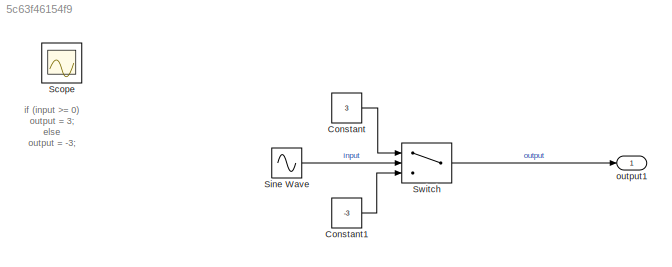
MODEL slx_5c63f46154f9
KIND model
CONFIG AbsTol = auto
CONFIG EnableMultiTasking = on
CONFIG FixedStep = auto
CONFIG MaxStep = auto
CONFIG MinStep = auto
CONFIG RelTol = 1e-3
CONFIG SampleTimeConstraint = Unconstrained
CONFIG Solver = VariableStepAuto
CONFIG SolverName = VariableStepAuto
CONFIG StartTime = 0.0
CONFIG StopTime = 10.0
BLOCK [Constant] Constant
  Value = 3
BLOCK [Constant] Constant1
  Value = -3
BLOCK [Scope] Scope
  IOType = viewer
  NumInputPorts = 1
  Ports = []
  ScopeSpecificationString = Simulink.scopes.TimeScopeBlockCfg('CurrentConfiguration', extmgr.ConfigurationSet(extmgr.Configuration('Core','General UI',true),extmgr.Configuration('Core','Source UI',true),extmgr.Configuration('Sources','WiredSimulink',true,'DataLoggingMaxPoints','7500','DataLoggingLimitDataPoints',true,'DataLoggingSaveFormat','Array','DataLoggingDecimation','1','DataLoggingDecimateData',true),extmgr.Configurat...<+1688ch>
BLOCK [Sin] Sine Wave
  Ports = [0, 1]
  SampleTime = 0
BLOCK [Switch] Switch
  InputSameDT = off
  SaturateOnIntegerOverflow = off
BLOCK [Outport] output1
  IconDisplay = Port number
ANNOTATION (root): if (input >= 0) output = 3; else output = -3;
LINE Constant1:1 -> Switch:3
LINE Constant:1 -> Switch:1
LINE Sine Wave:1 -> Switch:2
LINE Switch:1 -> output1:1
